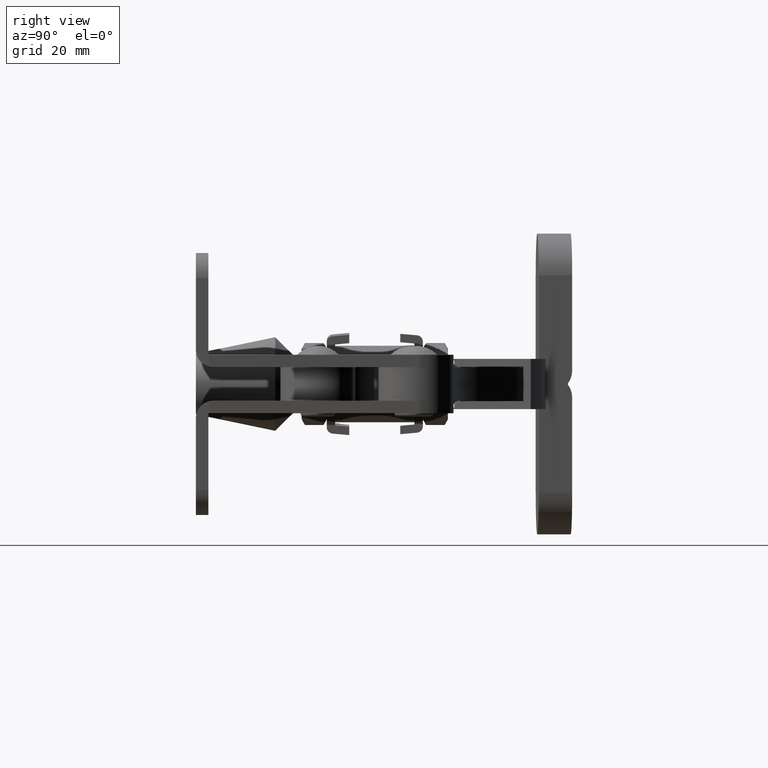
[diagram: clean part render]
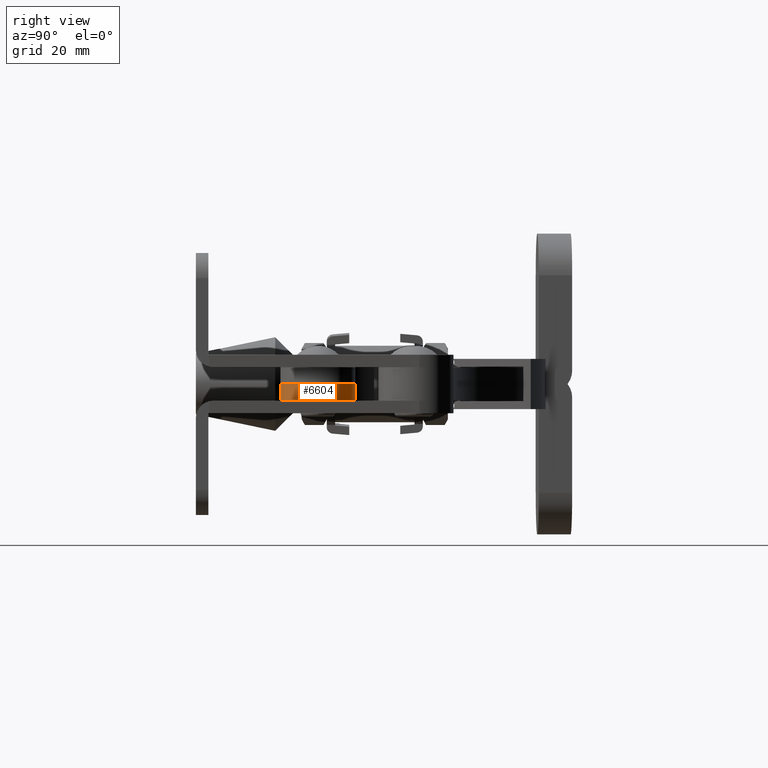
[diagram: same view with one face highlighted and labeled with its STEP entity id]
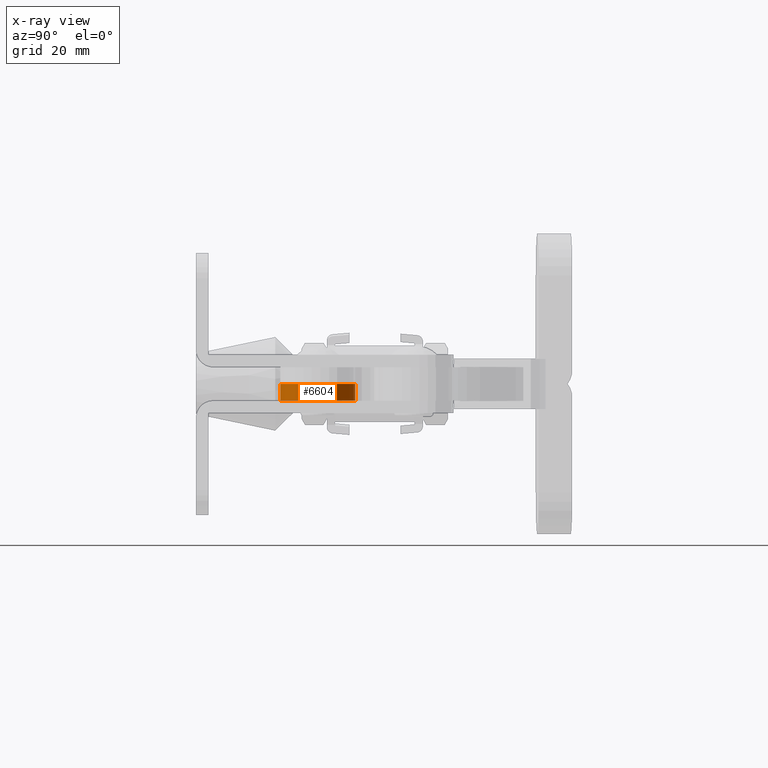
[diagram: x-ray of the same camera — body ghosted, the highlighted face saturated]
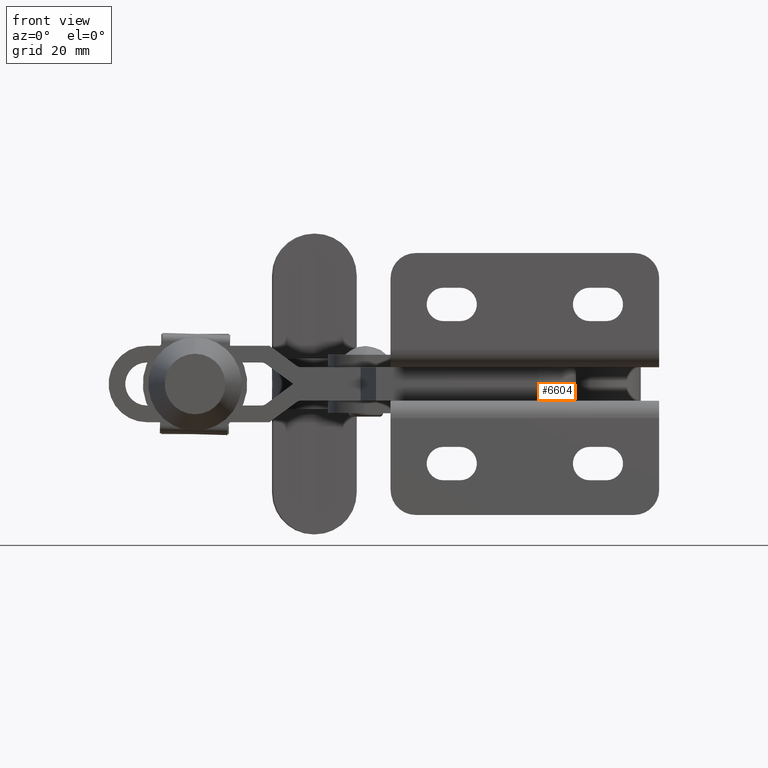
[diagram: same view with one face highlighted and labeled with its STEP entity id]
A machine part, right view. The second image highlights one B-rep face of the part: STEP entity #6604.
The next image is the same camera in x-ray: the body ghosted, the highlighted face saturated — about 0% of this face is hidden behind the body in this view.
A second angle (front view) of the same face is appended — the face is thin or edge-on in the first view.
In plain terms, the highlighted cylindrical surface (partial cylindrical patch) has radius 9 mm, axis along (0, 0, -1).
Its self-contained STEP definition (entity closure, byte-faithful):
#95 = DIRECTION ( 'NONE',  ( 0.0000000000000000000, 0.0000000000000000000, -1.000000000000000000 ) ) ;
#393 = EDGE_CURVE ( 'NONE', #2089, #5907, #5366, .T. ) ;
#551 = EDGE_CURVE ( 'NONE', #4898, #2089, #5781, .T. ) ;
#1481 = CARTESIAN_POINT ( 'NONE',  ( -16.85854850400981100, -14.58984935479911200, -8.000000000000007100 ) ) ;
#1956 = EDGE_CURVE ( 'NONE', #11896, #4898, #2395, .T. ) ;
#2089 = VERTEX_POINT ( 'NONE', #9475 ) ;
#2395 = CIRCLE ( 'NONE', #5773, 9.000000000000069300 ) ;
#2773 = EDGE_LOOP ( 'NONE', ( #10709, #8848, #8214, #8922 ) ) ;
#3304 = DIRECTION ( 'NONE',  ( -0.0000000000000000000, -0.0000000000000000000, 1.000000000000000000 ) ) ;
#3578 = LINE ( 'NONE', #9760, #5741 ) ;
#3670 = CARTESIAN_POINT ( 'NONE',  ( -15.59000000000019200, -23.50000000969690500, -8.000000000000007100 ) ) ;
#4159 = CARTESIAN_POINT ( 'NONE',  ( -15.59000000000019200, -32.50000000969697600, -4.000000000000003600 ) ) ;
#4190 = DIRECTION ( 'NONE',  ( -0.0000000000000000000, -0.0000000000000000000, -1.000000000000000000 ) ) ;
#4283 = DIRECTION ( 'NONE',  ( -1.000000000000000000, 0.0000000000000000000, 0.0000000000000000000 ) ) ;
#4612 = DIRECTION ( 'NONE',  ( -1.000000000000000000, 0.0000000000000000000, 0.0000000000000000000 ) ) ;
#4756 = DIRECTION ( 'NONE',  ( -1.000000000000000000, 0.0000000000000000000, 0.0000000000000000000 ) ) ;
#4898 = VERTEX_POINT ( 'NONE', #8317 ) ;
#5366 = CIRCLE ( 'NONE', #6846, 9.000000000000069300 ) ;
#5700 = EDGE_CURVE ( 'NONE', #5907, #11896, #3578, .T. ) ;
#5741 = VECTOR ( 'NONE', #4190, 1000.000000000000000 ) ;
#5773 = AXIS2_PLACEMENT_3D ( 'NONE', #3670, #10186, #4612 ) ;
#5781 = LINE ( 'NONE', #4159, #10455 ) ;
#5907 = VERTEX_POINT ( 'NONE', #6363 ) ;
#6289 = CYLINDRICAL_SURFACE ( 'NONE', #10818, 9.000000000000069300 ) ;
#6363 = CARTESIAN_POINT ( 'NONE',  ( -16.85854850400982800, -14.58984935479907800, -4.000049999999992800 ) ) ;
#6575 = FACE_OUTER_BOUND ( 'NONE', #2773, .T. ) ;
#6604 = ADVANCED_FACE ( 'NONE', ( #6575 ), #6289, .T. ) ;
#6846 = AXIS2_PLACEMENT_3D ( 'NONE', #8902, #3304, #4283 ) ;
#8214 = ORIENTED_EDGE ( 'NONE', *, *, #1956, .F. ) ;
#8317 = CARTESIAN_POINT ( 'NONE',  ( -15.59000000000019200, -32.50000000969697600, -8.000000000000007100 ) ) ;
#8775 = DIRECTION ( 'NONE',  ( -0.0000000000000000000, -0.0000000000000000000, 1.000000000000000000 ) ) ;
#8848 = ORIENTED_EDGE ( 'NONE', *, *, #551, .F. ) ;
#8902 = CARTESIAN_POINT ( 'NONE',  ( -15.59000000000019200, -23.50000000969690500, -4.000049999999992800 ) ) ;
#8922 = ORIENTED_EDGE ( 'NONE', *, *, #5700, .F. ) ;
#9475 = CARTESIAN_POINT ( 'NONE',  ( -15.59000000000019200, -32.50000000969697600, -4.000049999999992800 ) ) ;
#9760 = CARTESIAN_POINT ( 'NONE',  ( -16.85854850400987100, -14.58984935479915800, -8.000000000000007100 ) ) ;
#10186 = DIRECTION ( 'NONE',  ( 0.0000000000000000000, 0.0000000000000000000, -1.000000000000000000 ) ) ;
#10455 = VECTOR ( 'NONE', #8775, 1000.000000000000000 ) ;
#10709 = ORIENTED_EDGE ( 'NONE', *, *, #393, .F. ) ;
#10818 = AXIS2_PLACEMENT_3D ( 'NONE', #11276, #95, #4756 ) ;
#11276 = CARTESIAN_POINT ( 'NONE',  ( -15.59000000000019200, -23.50000000969690500, -8.000000000000007100 ) ) ;
#11896 = VERTEX_POINT ( 'NONE', #1481 ) ;